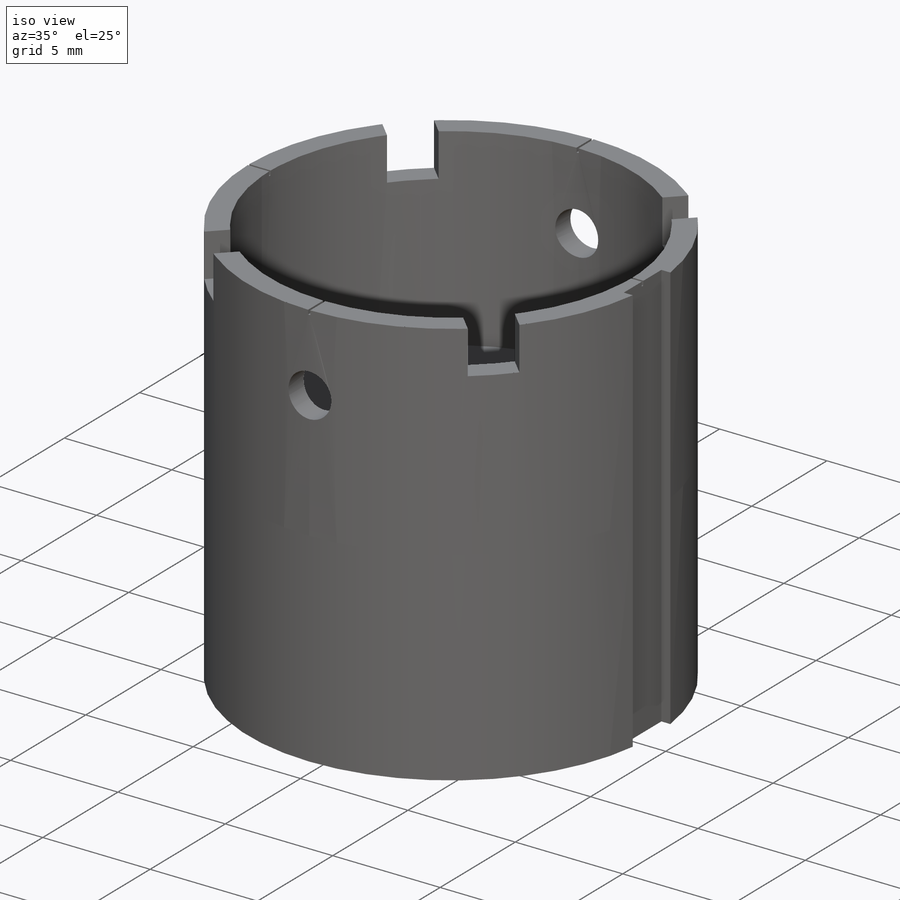
[diagram: iso view]
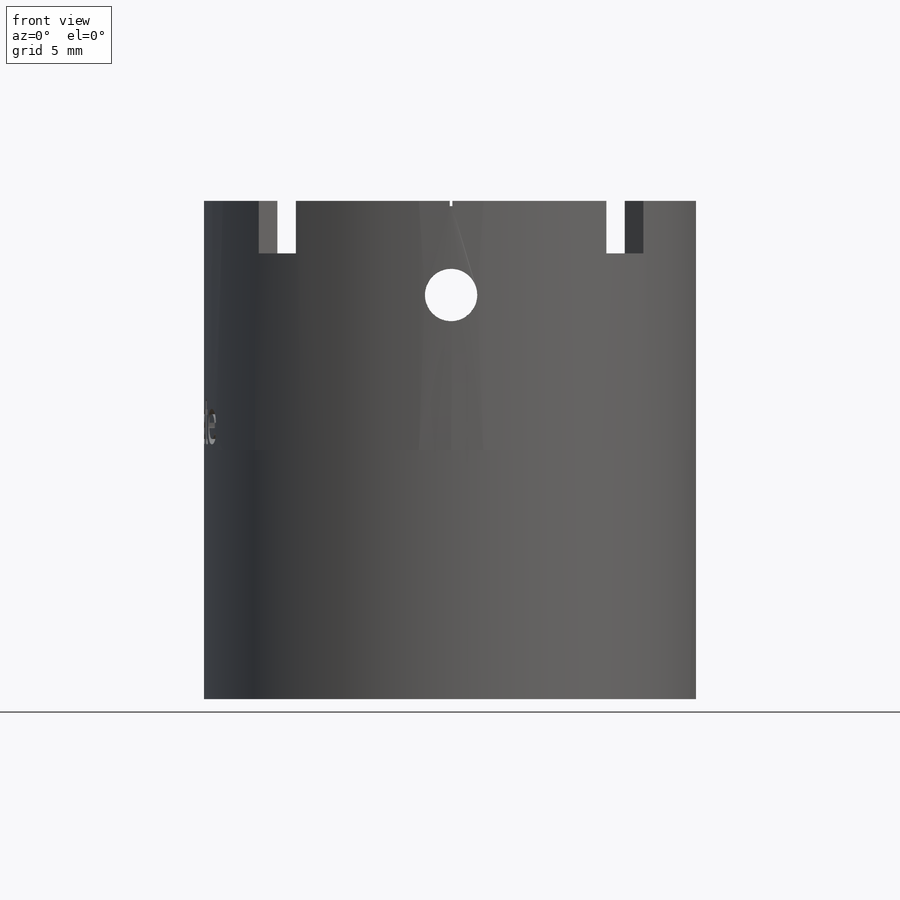
[diagram: front view]
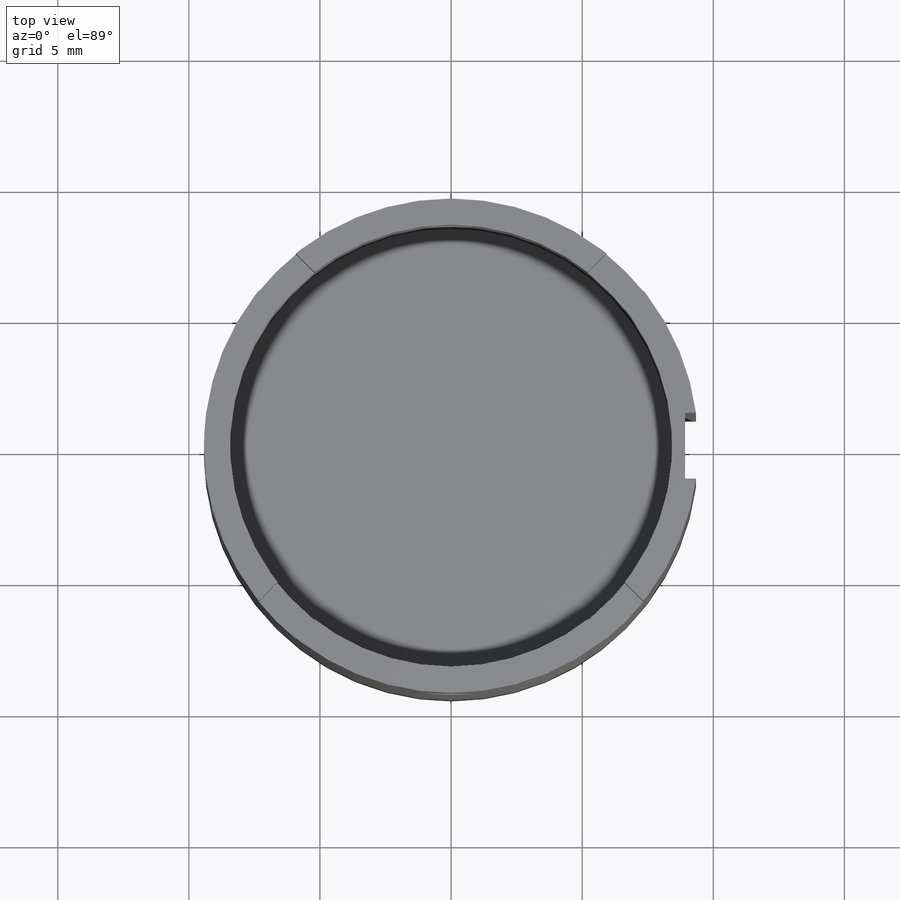
[diagram: top view]
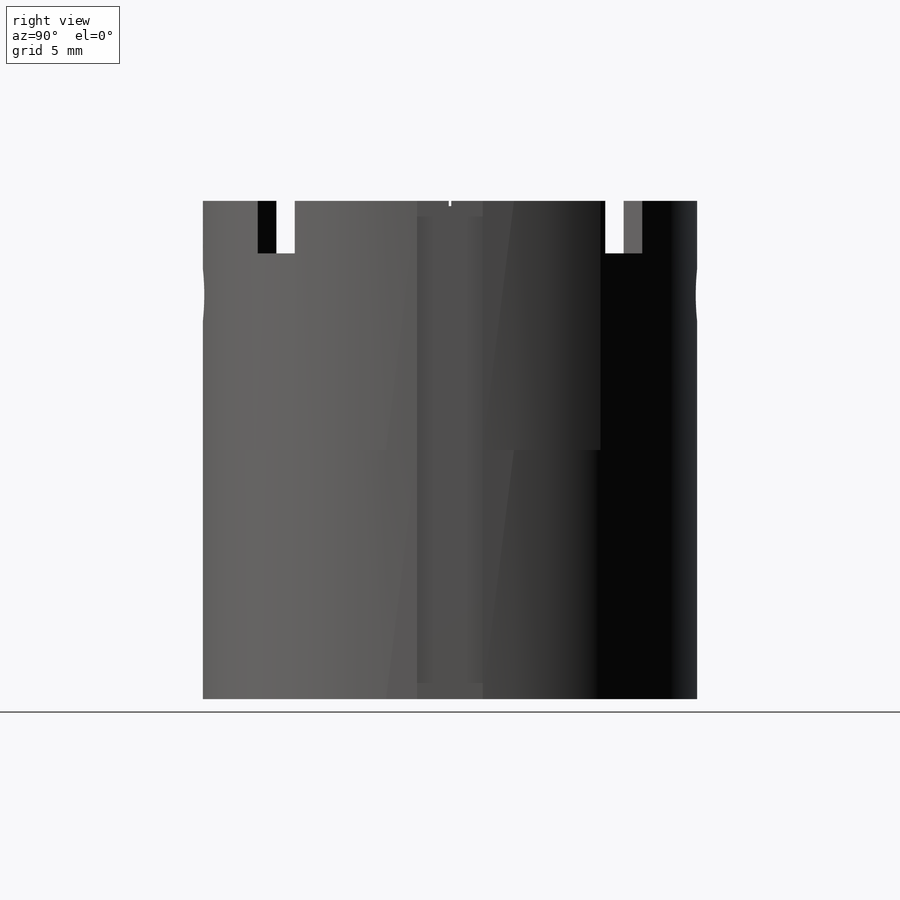
[diagram: right view]
SOLIDWORKS PART (.sldprt)
format: sldprt  version: not decoded by parser v0  size: 1,234,944 bytes
history: native  units: mm
features: sketch x19, plane x7, cut_extrude x5, extrude x2, material x1 (+11 scaffold rows collapsed)
feature tree (45):
  scaffold x11  (default folders/planes/origin — collapsed)
  material  "Material <not specified>"
  sketch  "reference_lines"  dims[c1.D1=16.85mm c1.D2=14.9mm c1.D3=16.9mm c2.D2=16.9mm c2.D8=7.42mm c2.D3=1.015mm c3.D2=1.0mm c3.D4=1.5mm c3.D5=1.5mm c3.D6=1.5mm c3.D7=1.5mm c3.D8=45.0deg]
  sketch  "lower_gridded_body"
  extrude  "Boss-Extrude1"  Depth=10mm
  plane  "gridded_body_upper_plane"
  sketch  "upper_gridded_body"
  extrude  "Boss-Extrude2"  Depth=9mm
  plane  "grid_upper_plane"
  sketch  "cardinal_orientation_notches"  dims[D1=0.4mm D2=0.1mm]
  sketch  "in-chamber_orientation_groove"  dims[c1.D1=0.5mm c1.D2=2.0mm c1.D3=2.0mm c1.D4=0.5mm c1.D5=2.0mm c1.D6=0.5mm c1.D7=2.0mm c1.D8=0.5mm c2.D1=1.25mm c2.D2=1.25mm]
  cut_extrude  "Cut-Extrude3"  [1 undecoded]
  plane  "through_main_axis_plane"
  plane  "side_view_plane"
  sketch  "3D_center-point"
  sketch  "vertical_main_axis"
  sketch  "side-view_base-tangent-point"
  sketch  "side_view_vertical_axis_projection"
  sketch  "upper_grid_circle"
  sketch  "side-view_top-tangent-point"
  sketch  "side_hole_center_positions"  dims[D1=4.0mm]
  sketch  "top_cardinal_orientation_notches"  dims[D1=0.1mm]
  cut_extrude  "Cut-Extrude5"  Depth=0.2mm
  plane  "diagonal_side-view_1_plane"
  plane  "diagonal_side-view_2_plane"
  sketch  "diagonal_side-view_1_top_tangent_point"
  sketch  "diagonal_side-view_1_handle_notches"  dims[D1=2.0mm D2=2.0mm]
  cut_extrude  "Cut-Extrude6"  [1 undecoded]
  sketch  "diagonal_side-view_2_top_tangent_point"
  sketch  "diagonal_side-view_2_handle_notches"  dims[D1=2.0mm D2=2.0mm]
  cut_extrude  "Cut-Extrude7"  [1 undecoded]
  plane  "label_plane"
  sketch  "label_text"  dims[D1=0.25mm]
  sketch  "Sketch1"  dims[D1=2.0mm]
  cut_extrude  "Cut-Extrude8"  [1 undecoded]
decode coverage: 12 of 26 modeling features carry decoded parameters
note: 4 parameter values undecoded
summary: no parameter record found for 4 features
note: suppression state not decoded; provenance and decode notes live in map.json
